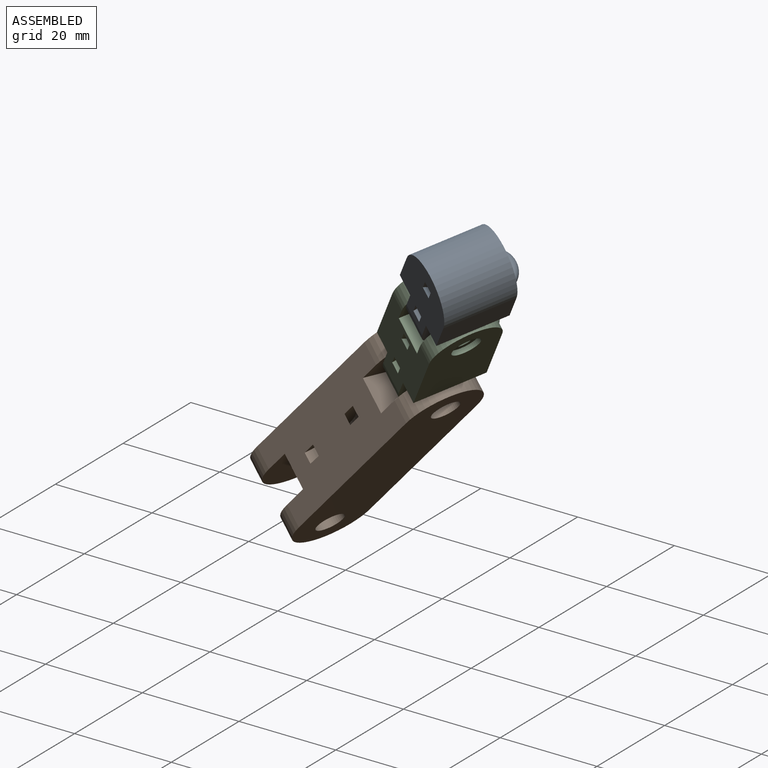
[diagram: assembled view]
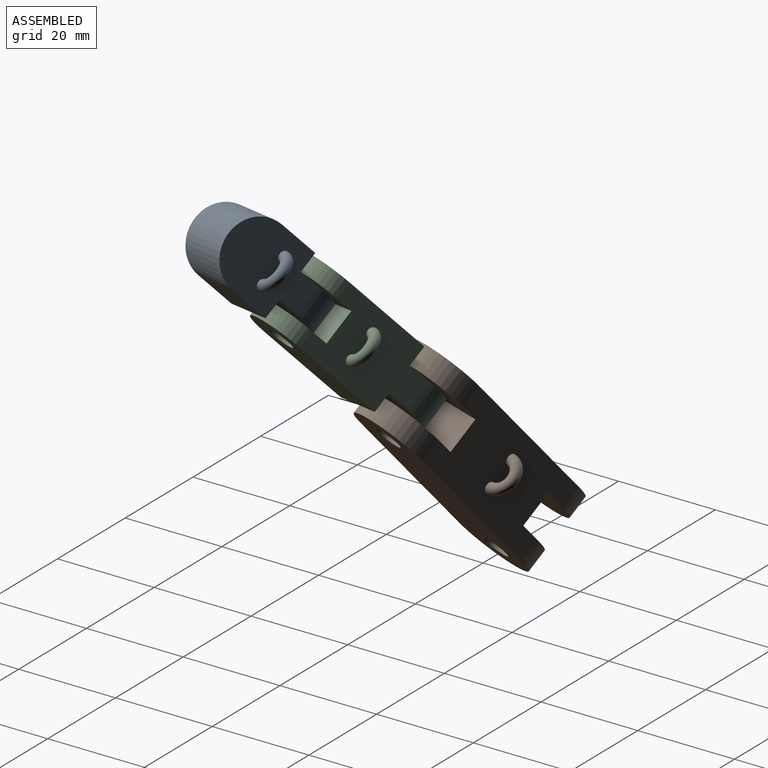
[diagram: assembled view, second angle]
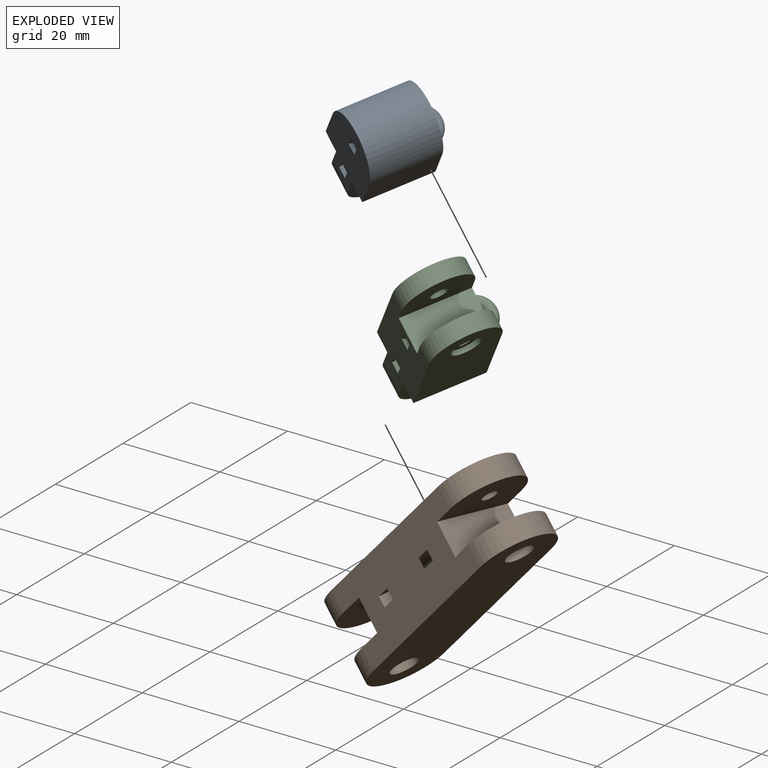
[diagram: exploded view]
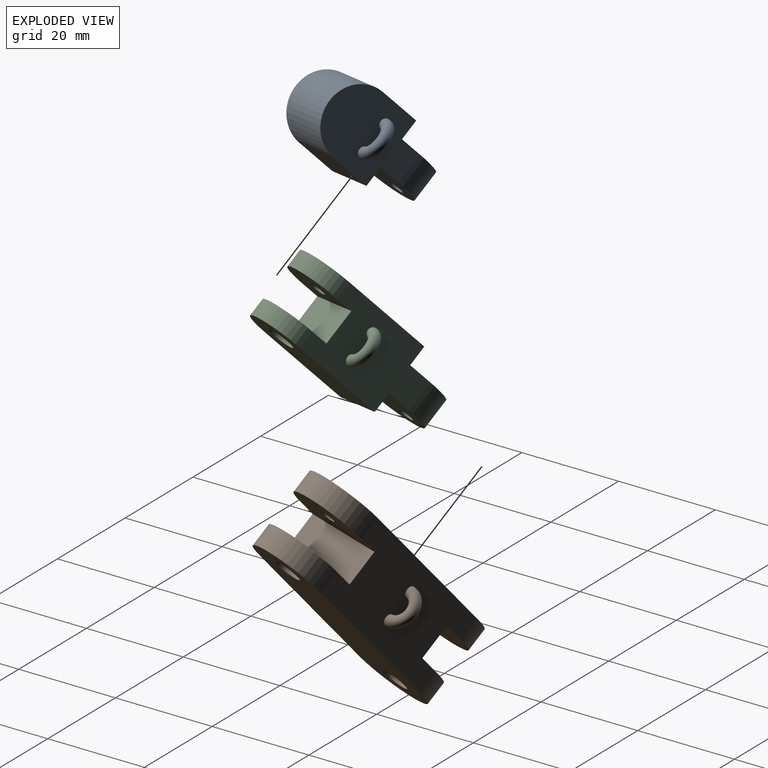
[diagram: exploded view, second angle]
ASSEMBLY  parts=3 mates=2
PART A: 16 faces, bbox 14x18.5x26.8 mm
  f0: plane 19.75x14mm, normal (0,-1,0), area 208.3mm2, adj f1,f2,f3,f4,f5,f6,f7,f10
  f1: plane 14x11.5mm, normal (1,0,0), area 131.4mm2, adj f0,f2,f8,f9,f10
  f2: plane 14x4mm, normal (0,0,-1), area 56mm2, adj f0,f1,f3,f8
  f3: plane 14x8.25mm, normal (1,0,0), area 115.5mm2, adj f0,f2,f4,f8
  f4: cylinder r=7mm len=14mm, axis (0,1,0), area 307.9mm2, adj f0,f3,f5,f8
  f5: plane 14x8.25mm, normal (-1,0,0), area 115.5mm2, adj f0,f4,f6,f8
  f6: plane 14x4mm, normal (0,0,-1), area 56mm2, adj f0,f5,f7,f8
  f7: plane 14x11.5mm, normal (-1,0,0), area 131.4mm2, adj f0,f6,f8,f9,f10
  f8: plane 19.75x14mm, normal (0,1,0), area 211.5mm2, adj f1,f2,f3,f4,f5,f6,f7,f10
  f9: cylinder r=1.65mm len=6mm, axis (1,0,0), area 62.2mm2, adj f1,f7
  f10: cylinder r=7mm len=14mm, axis (-1,0,0), area 131.9mm2, adj f0,f1,f7,f8
  f11: torus R=3mm, axis (0,0,1), area 66.6mm2, adj f8
  f12: cylinder r=7.5mm len=13.66mm, axis (-1,0,0), area 37.8mm2, adj f0,f14,f15
  f13: cylinder r=5.3mm len=8.6mm, axis (-1,0,0), area 22.1mm2, adj f0,f14,f15
  f14: plane 13.66x4.4mm, normal (-1,0,0), area 30mm2, adj f0,f12,f13
  f15: plane 13.66x4.4mm, normal (1,0,0), area 30mm2, adj f0,f12,f13
PART B: 41 faces, bbox 16x20.5x53 mm
  f0: plane 53x16mm, normal (-1,0,0), area 740.7mm2, adj f12,f13,f16,f17,f22,f23,f24,f25
  f1: cylinder r=1.55mm len=3.1mm, axis (1,0,0), area 14.6mm2, adj f11,f29
  f2: cylinder r=1.55mm len=3.1mm, axis (1,0,0), area 14.6mm2, adj f6,f28
  f3: plane 53x16mm, normal (1,0,0), area 743.8mm2, adj f12,f13,f14,f15,f18,f21
  f4: cylinder r=1.55mm len=3.1mm, axis (1,0,0), area 14.6mm2, adj f9,f20
  f5: cylinder r=1.55mm len=3.1mm, axis (1,0,0), area 14.6mm2, adj f8,f19
  f6: plane 16x13.5mm, normal (1,0,0), area 181mm2, adj f2,f7,f12,f13,f16
  f7: plane 16x7mm, normal (0,0,-1), area 112mm2, adj f6,f8,f12,f13
  f8: plane 16x13.5mm, normal (-1,0,0), area 181mm2, adj f5,f7,f12,f13,f15
  f9: plane 16x12.59mm, normal (-1,0,0), area 166.5mm2, adj f4,f10,f12,f13,f14
  f10: plane 16x7mm, normal (0,0,1), area 112mm2, adj f9,f11,f12,f13
  f11: plane 16x12.59mm, normal (1,0,0), area 166.5mm2, adj f1,f10,f12,f13,f17
  f12: plane 37x16mm, normal (0,-1,0), area 508.8mm2, adj f0,f3,f6,f7,f8,f9,f10,f11
  f13: plane 37x16mm, normal (0,1,0), area 513.4mm2, adj f0,f3,f6,f7,f8,f9,f10,f11
  f14: cylinder r=8mm len=16mm, axis (1,0,0), area 113.1mm2, adj f3,f9,f12,f13
  f15: cylinder r=8mm len=16mm, axis (-1,0,0), area 113.1mm2, adj f3,f8,f12,f13
  f16: cylinder r=8mm len=16mm, axis (-1,0,0), area 113.1mm2, adj f0,f6,f12,f13
  f17: cylinder r=8mm len=16mm, axis (1,0,0), area 113.1mm2, adj f0,f11,f12,f13
  f18: cylinder r=2.8mm len=5.6mm, axis (1,0,0), area 52.8mm2, adj f3,f19
  f19: plane 5.6x5.6mm, normal (1,0,0), area 17.1mm2, adj f5,f18
  f20: plane 5.6x5.6mm, normal (1,0,0), area 17.1mm2, adj f4,f21
  f21: cylinder r=2.8mm len=5.6mm, axis (1,0,0), area 52.8mm2, adj f3,f20
  f22: plane 3x2.75mm, normal (0,0.5,-0.87), area 9.5mm2, adj f0,f23,f27,f28
  f23: plane 3x2.75mm, normal (0,-0.5,-0.87), area 9.5mm2, adj f0,f22,f24,f28
  f24: plane 3.18x3mm, normal (0,-1,0), area 9.5mm2, adj f0,f23,f25,f28
  f25: plane 3x2.75mm, normal (0,-0.5,0.87), area 9.5mm2, adj f0,f24,f26,f28
  f26: plane 3x2.75mm, normal (0,0.5,0.87), area 9.5mm2, adj f0,f25,f27,f28
  f27: plane 3.18x3mm, normal (0,1,0), area 9.5mm2, adj f0,f22,f26,f28
  f28: plane 6.35x5.5mm, normal (-1,0,0), area 18.6mm2, adj f2,f22,f23,f24,f25,f26,f27
  f29: plane 6.35x5.5mm, normal (-1,0,0), area 18.6mm2, adj f1,f30,f31,f32,f33,f34,f35
  f30: plane 3x2.75mm, normal (0,0.5,-0.87), area 9.5mm2, adj f0,f29,f31,f35
  f31: plane 3x2.75mm, normal (0,-0.5,-0.87), area 9.5mm2, adj f0,f29,f30,f32
  f32: plane 3.18x3mm, normal (0,-1,0), area 9.5mm2, adj f0,f29,f31,f33
  f33: plane 3x2.75mm, normal (0,-0.5,0.87), area 9.5mm2, adj f0,f29,f32,f34
  f34: plane 3x2.75mm, normal (0,0.5,0.87), area 9.5mm2, adj f0,f29,f33,f35
  f35: plane 3.18x3mm, normal (0,1,0), area 9.5mm2, adj f0,f29,f30,f34
  f36: torus R=3mm, axis (0,0,1), area 66.6mm2, adj f13
  f37: cylinder r=7.8mm len=10.86mm, axis (1,0,0), area 26.4mm2, adj f12,f39,f40
  f38: cylinder r=10mm len=16.57mm, axis (1,0,0), area 43mm2, adj f12,f39,f40
  f39: plane 16.57x4.4mm, normal (1,0,0), area 34.8mm2, adj f12,f37,f38
  f40: plane 16.57x4.4mm, normal (-1,0,0), area 34.8mm2, adj f12,f37,f38
PART C: 33 faces, bbox 14x18.3x37.5 mm
  f0: plane 25.49x14mm, normal (-1,0,0), area 309.6mm2, adj f11,f13,f14,f16,f22,f23,f24,f25
  f1: cylinder r=1.65mm len=3.3mm, axis (1,0,0), area 20.7mm2, adj f10,f21
  f2: cylinder r=1.65mm len=3.3mm, axis (1,0,0), area 25.9mm2, adj f8,f19
  f3: plane 14x10.5mm, normal (-1,0,0), area 117.4mm2, adj f12,f13,f14,f15,f18
  f4: plane 14x10.47mm, normal (1,0,0), area 117mm2, adj f5,f13,f14,f15,f18
  f5: plane 14x1.5mm, normal (1,0,-0.01), area 21mm2, adj f4,f6,f13,f14
  f6: plane 14x4mm, normal (0,0,-1), area 56mm2, adj f5,f7,f13,f14
  f7: plane 25.52x14mm, normal (1,0,0), area 310.8mm2, adj f6,f13,f14,f17,f20
  f8: plane 14x10.51mm, normal (-1,0,0), area 117.5mm2, adj f2,f9,f13,f14,f17
  f9: plane 14x7mm, normal (0,0,1), area 98mm2, adj f8,f10,f13,f14
  f10: plane 14x10.51mm, normal (1,0,0), area 117.5mm2, adj f1,f9,f13,f14,f16
  f11: plane 14x4mm, normal (0,0,-1), area 56mm2, adj f0,f12,f13,f14
  f12: plane 14x1.5mm, normal (-1,0,0.01), area 21mm2, adj f3,f11,f13,f14
  f13: plane 23.49x14mm, normal (0,-1,0), area 253.3mm2, adj f0,f3,f4,f5,f6,f7,f8,f9
  f14: plane 23.49x14mm, normal (0,1,0), area 256.5mm2, adj f0,f3,f4,f5,f6,f7,f8,f9
  f15: cylinder r=1.65mm len=6mm, axis (1,0,0), area 62.2mm2, adj f3,f4
  f16: cylinder r=7mm len=14mm, axis (1,0,0), area 77mm2, adj f0,f10,f13,f14
  f17: cylinder r=7mm len=14mm, axis (1,0,0), area 77mm2, adj f7,f8,f13,f14
  f18: cylinder r=7mm len=14mm, axis (-1,0,0), area 131.9mm2, adj f3,f4,f13,f14
  f19: plane 5.7x5.7mm, normal (1,0,0), area 17mm2, adj f2,f20
  f20: cylinder r=2.85mm len=5.7mm, axis (1,0,0), area 17.9mm2, adj f7,f19
  f21: plane 6.35x5.57mm, normal (-1,0,0), area 17.7mm2, adj f1,f22,f23,f24,f25,f26,f27
  f22: plane 3.18x1.5mm, normal (0,1,0.02), area 4.8mm2, adj f0,f21,f23,f27
  f23: plane 2.72x1.65mm, normal (0,0.52,-0.86), area 4.8mm2, adj f0,f21,f22,f24
  f24: plane 2.78x1.53mm, normal (0,-0.48,-0.88), area 4.8mm2, adj f0,f21,f23,f25
  f25: plane 3.18x1.5mm, normal (0,-1,-0.02), area 4.8mm2, adj f0,f21,f24,f26
  f26: plane 2.72x1.65mm, normal (0,-0.52,0.86), area 4.8mm2, adj f0,f21,f25,f27
  f27: plane 2.78x1.53mm, normal (0,0.48,0.88), area 4.8mm2, adj f0,f21,f22,f26
  f28: torus R=2.89mm, axis (0,0,1), area 64.2mm2, adj f14
  f29: cylinder r=7.5mm len=13.66mm, axis (1,0,0), area 37.8mm2, adj f13,f31,f32
  f30: cylinder r=5.3mm len=8.6mm, axis (1,0,0), area 22.1mm2, adj f13,f31,f32
  f31: plane 13.66x4.4mm, normal (1,0,0), area 30mm2, adj f13,f29,f30
  f32: plane 13.66x4.4mm, normal (-1,0,0), area 30mm2, adj f13,f29,f30
PLACE A rot(axis=(0.45,0.76,-0.47),50.7deg) t=(-28.84,220.02,163.81)mm
PLACE B rot(axis=(0,0.94,-0.34),45deg) t=(-72.18,237.11,159.12)mm
PLACE C rot(axis=(0.45,0.76,-0.47),50.7deg) t=(-32.67,214.86,160.26)mm
MATE revolute A.f9 <-> C.f1  axis (-0.71,0.24,0.67) through (-48.94,215.08,196.23)mm
MATE revolute C.f15 <-> B.f1  axis (0.71,-0.24,-0.67) through (-58.74,226.8,172.6)mm
